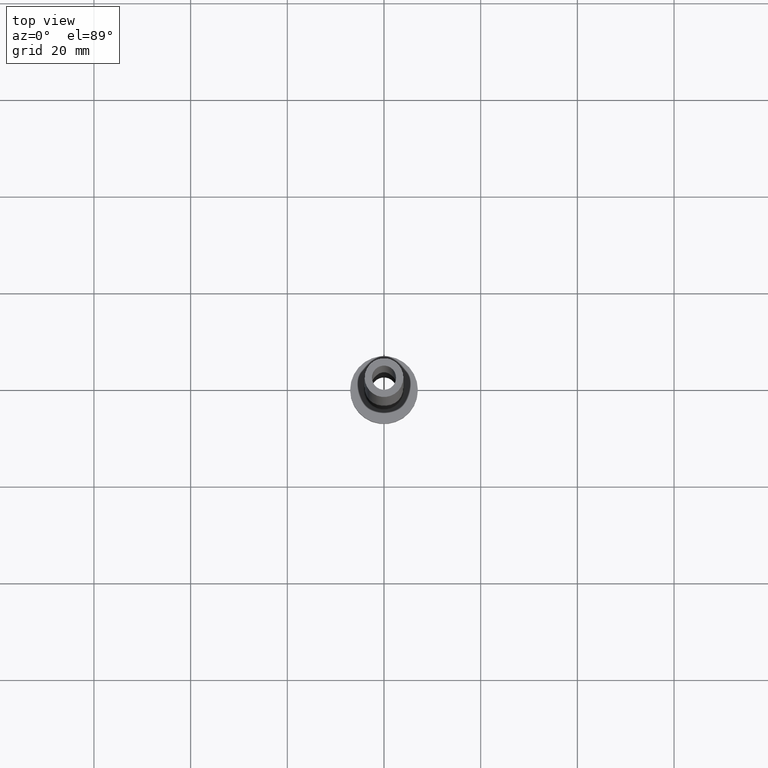
[diagram: clean part render]
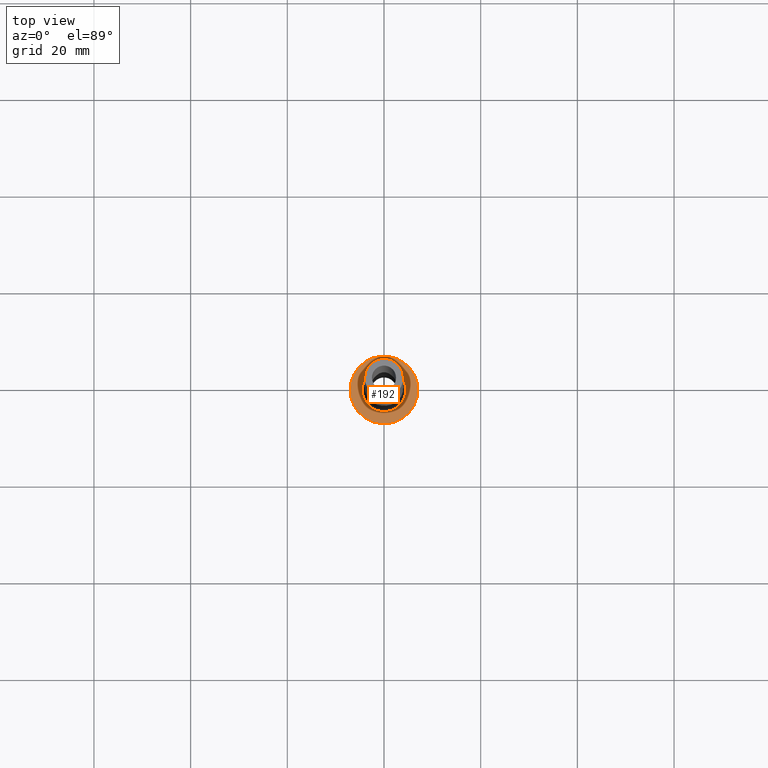
[diagram: same view with one face highlighted and labeled with its STEP entity id]
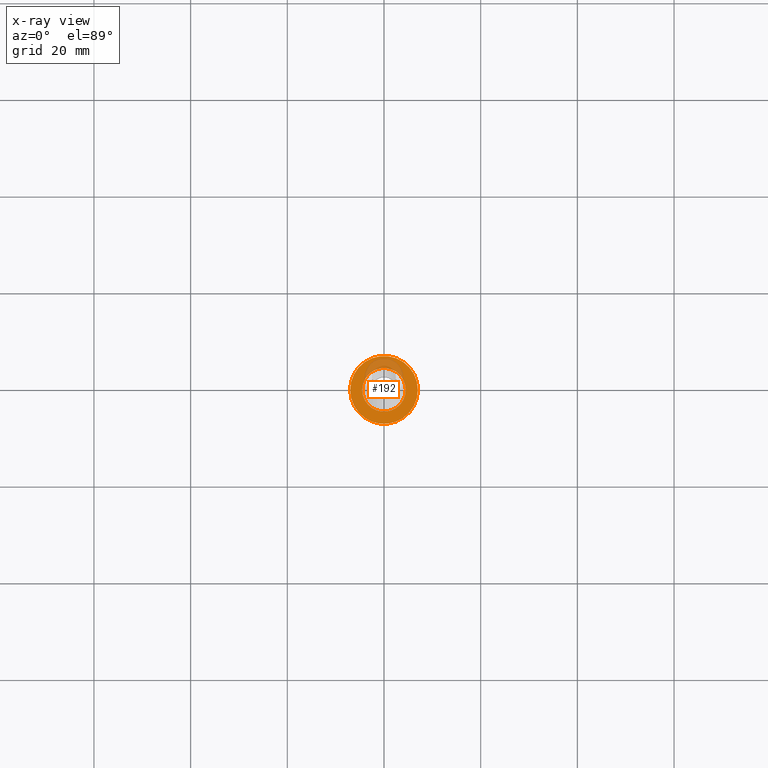
[diagram: x-ray of the same camera — body ghosted, the highlighted face saturated]
A machine part, top view. The second image highlights one B-rep face of the part: STEP entity #192.
The next image is the same camera in x-ray: the body ghosted, the highlighted face saturated — about 17% of this face is hidden behind the body in this view.
In plain terms, the highlighted planar face has unit normal (0, 0, 1).
Its self-contained STEP definition (entity closure, byte-faithful):
#20 = DIRECTION ( 'NONE',  ( 1.000000000000000000, 0.000000000000000000, 0.000000000000000000 ) ) ;
#21 = AXIS2_PLACEMENT_3D ( 'NONE', #212, #282, #358 ) ;
#32 = CIRCLE ( 'NONE', #21, 4.500000000000000888 ) ;
#50 = ORIENTED_EDGE ( 'NONE', *, *, #294, .T. ) ;
#65 = EDGE_CURVE ( 'NONE', #310, #152, #96, .T. ) ;
#67 = CIRCLE ( 'NONE', #196, 7.000000000000000000 ) ;
#93 = FACE_OUTER_BOUND ( 'NONE', #452, .T. ) ;
#95 = ORIENTED_EDGE ( 'NONE', *, *, #398, .T. ) ;
#96 = CIRCLE ( 'NONE', #412, 7.000000000000000000 ) ;
#100 = VERTEX_POINT ( 'NONE', #227 ) ;
#124 = FACE_BOUND ( 'NONE', #235, .T. ) ;
#125 = ORIENTED_EDGE ( 'NONE', *, *, #65, .T. ) ;
#126 = CARTESIAN_POINT ( 'NONE',  ( 0.000000000000000000, 0.000000000000000000, 5.000000000000000000 ) ) ;
#130 = CARTESIAN_POINT ( 'NONE',  ( -7.000000000000000000, 0.000000000000000000, 5.000000000000000000 ) ) ;
#137 = DIRECTION ( 'NONE',  ( 0.000000000000000000, 0.000000000000000000, 1.000000000000000000 ) ) ;
#139 = AXIS2_PLACEMENT_3D ( 'NONE', #408, #259, #305 ) ;
#152 = VERTEX_POINT ( 'NONE', #130 ) ;
#169 = ORIENTED_EDGE ( 'NONE', *, *, #249, .T. ) ;
#178 = DIRECTION ( 'NONE',  ( 0.000000000000000000, 0.000000000000000000, 1.000000000000000000 ) ) ;
#192 = ADVANCED_FACE ( 'NONE', ( #124, #93 ), #437, .T. ) ;
#196 = AXIS2_PLACEMENT_3D ( 'NONE', #245, #178, #288 ) ;
#202 = CIRCLE ( 'NONE', #379, 4.500000000000000888 ) ;
#212 = CARTESIAN_POINT ( 'NONE',  ( 0.000000000000000000, 0.000000000000000000, 5.000000000000000000 ) ) ;
#227 = CARTESIAN_POINT ( 'NONE',  ( -4.500000000000000888, 5.510910596163088569E-16, 5.000000000000002665 ) ) ;
#235 = EDGE_LOOP ( 'NONE', ( #169, #95 ) ) ;
#240 = DIRECTION ( 'NONE',  ( 1.000000000000000000, 0.000000000000000000, 0.000000000000000000 ) ) ;
#245 = CARTESIAN_POINT ( 'NONE',  ( 0.000000000000000000, 0.000000000000000000, 5.000000000000000000 ) ) ;
#249 = EDGE_CURVE ( 'NONE', #339, #100, #202, .T. ) ;
#250 = CARTESIAN_POINT ( 'NONE',  ( 7.000000000000000000, 8.572527594031473190E-16, 5.000000000000000000 ) ) ;
#259 = DIRECTION ( 'NONE',  ( 0.000000000000000000, 0.000000000000000000, 1.000000000000000000 ) ) ;
#264 = DIRECTION ( 'NONE',  ( -0.000000000000000000, -0.000000000000000000, -1.000000000000000000 ) ) ;
#276 = CARTESIAN_POINT ( 'NONE',  ( 0.000000000000000000, 0.000000000000000000, 5.000000000000000000 ) ) ;
#282 = DIRECTION ( 'NONE',  ( -0.000000000000000000, -0.000000000000000000, -1.000000000000000000 ) ) ;
#288 = DIRECTION ( 'NONE',  ( 1.000000000000000000, 0.000000000000000000, 0.000000000000000000 ) ) ;
#294 = EDGE_CURVE ( 'NONE', #152, #310, #67, .T. ) ;
#305 = DIRECTION ( 'NONE',  ( 1.000000000000000000, 0.000000000000000000, -0.000000000000000000 ) ) ;
#310 = VERTEX_POINT ( 'NONE', #250 ) ;
#339 = VERTEX_POINT ( 'NONE', #426 ) ;
#358 = DIRECTION ( 'NONE',  ( 1.000000000000000000, 0.000000000000000000, 0.000000000000000000 ) ) ;
#379 = AXIS2_PLACEMENT_3D ( 'NONE', #126, #264, #20 ) ;
#398 = EDGE_CURVE ( 'NONE', #100, #339, #32, .T. ) ;
#408 = CARTESIAN_POINT ( 'NONE',  ( 0.000000000000000000, 0.000000000000000000, 5.000000000000000000 ) ) ;
#412 = AXIS2_PLACEMENT_3D ( 'NONE', #276, #137, #240 ) ;
#426 = CARTESIAN_POINT ( 'NONE',  ( 4.500000000000000888, 0.000000000000000000, 5.000000000000002665 ) ) ;
#437 = PLANE ( 'NONE',  #139 ) ;
#452 = EDGE_LOOP ( 'NONE', ( #50, #125 ) ) ;